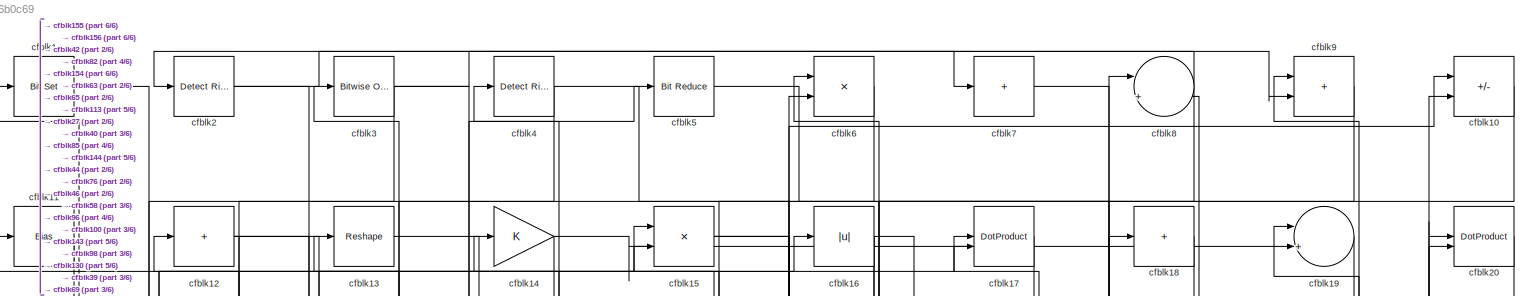
[diagram: root canvas - part 1/6, full width, top band]
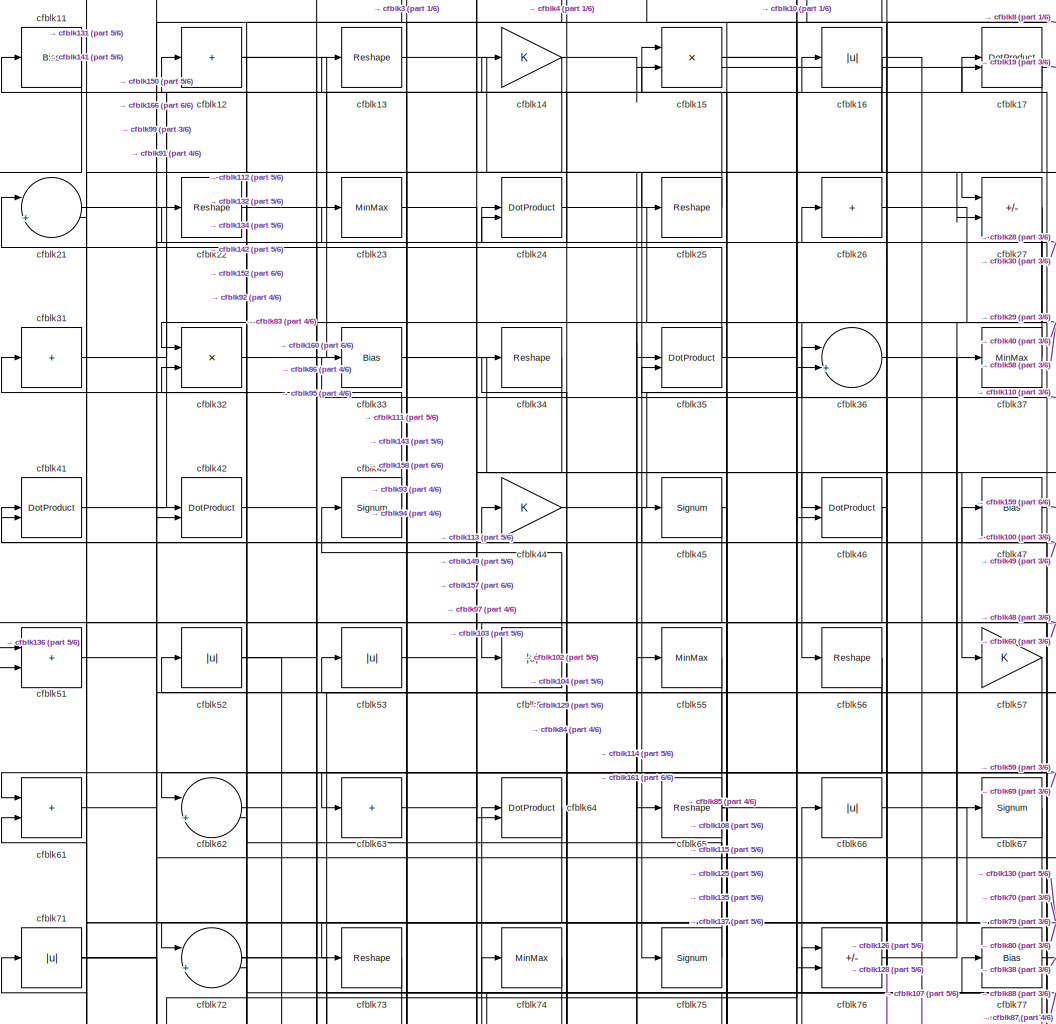
[diagram: root canvas - part 2/6, top center region]
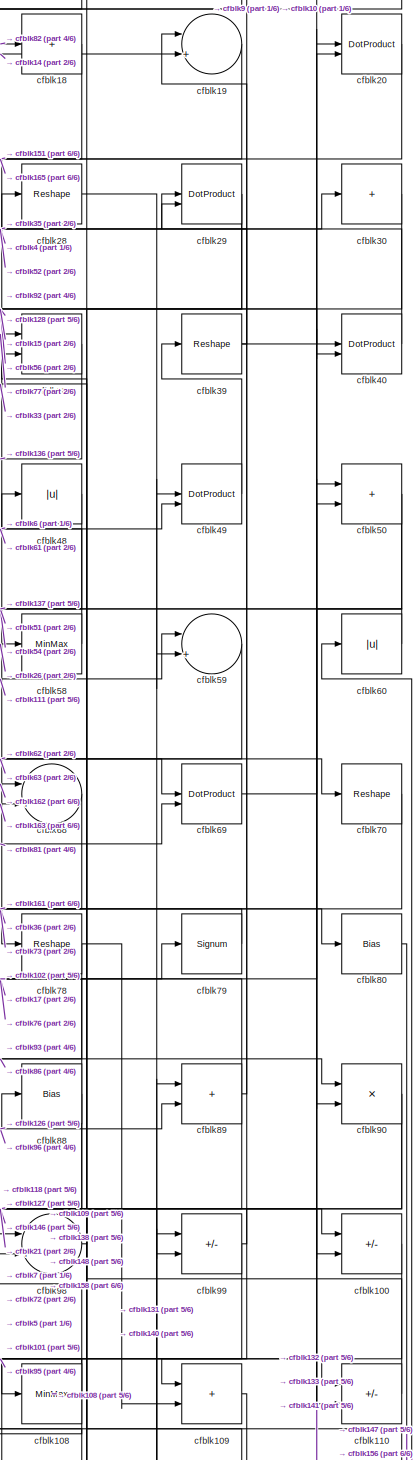
[diagram: root canvas - part 3/6, middle right region]
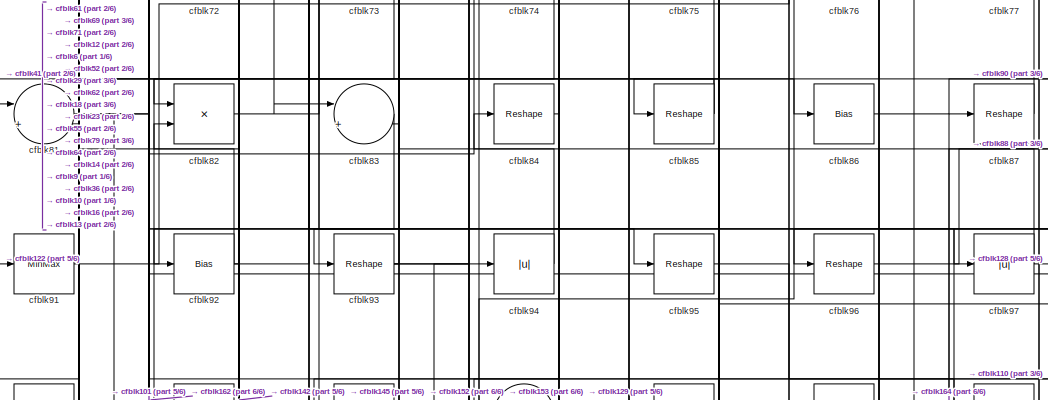
[diagram: root canvas - part 4/6, central region]
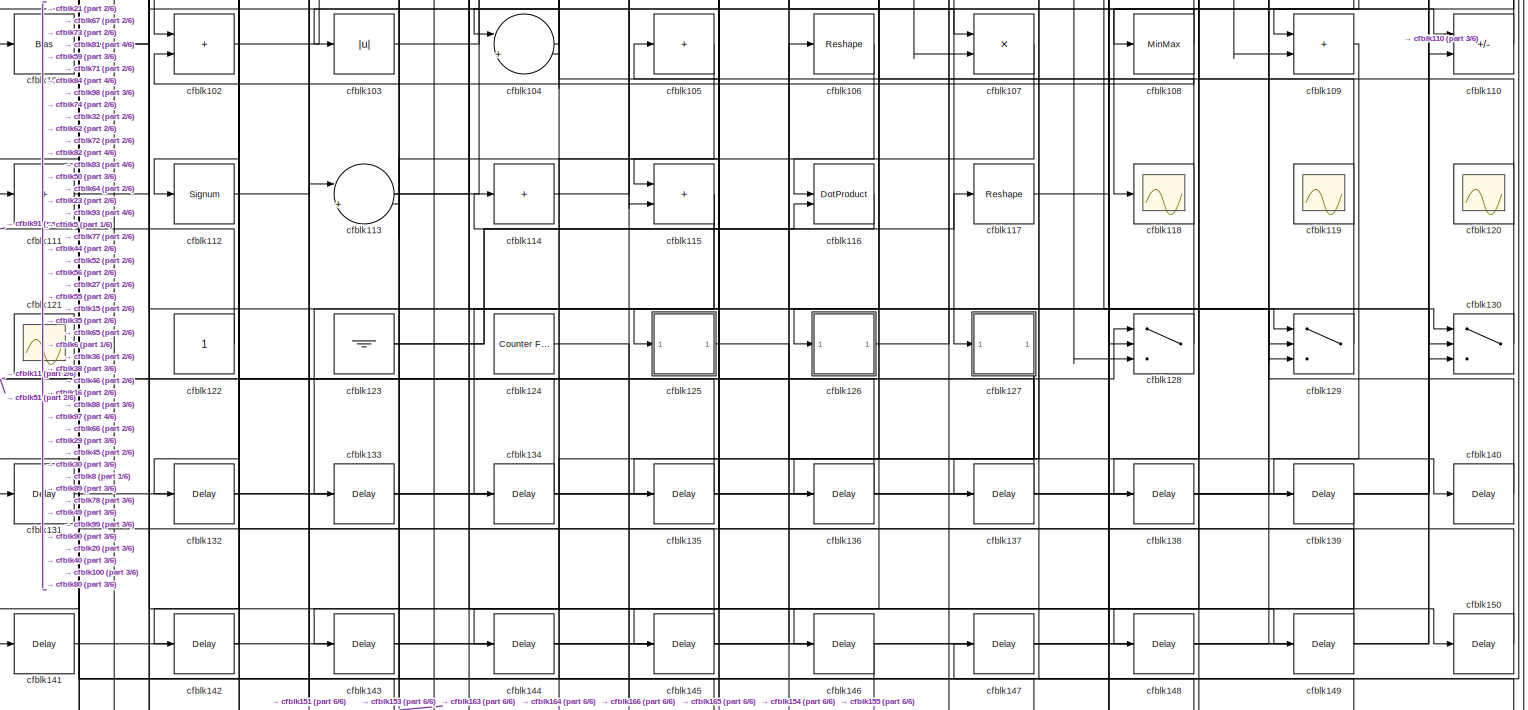
[diagram: root canvas - part 5/6, full width, bottom band]
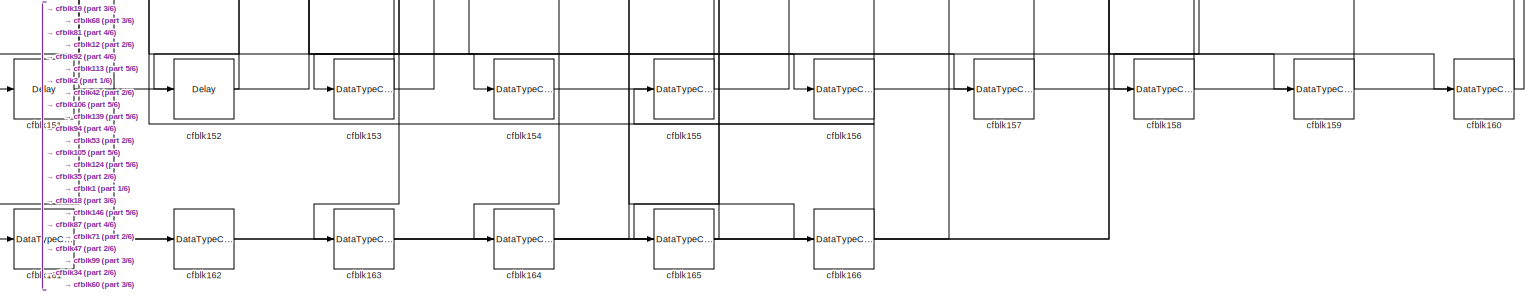
[diagram: root canvas - part 6/6, full width, bottom band]
MODEL slx_fe7d186b0c69
KIND model
CONFIG AbsTol = auto
CONFIG EnableMultiTasking = off
CONFIG FixedStep = auto
CONFIG MaxStep = auto
CONFIG MinStep = auto
CONFIG RelTol = 1e-3
CONFIG SampleTimeConstraint = Unconstrained
CONFIG SolverName = VariableStepAuto
CONFIG StartTime = 0.0
CONFIG StopTime = 10.0
BLOCK [Reference] cfblk1  REF=simulink/Logic and Bit
Operations/Bit Set
  LibrarySourceBlock = hdlsllib/Logic and Bit\nOperations/Bit Set
  SourceBlock = simulink/Logic and Bit\nOperations/Bit Set
  SourceType = Bit Set
BLOCK [Sum] cfblk10
  IconShape = rectangular
  Inputs = +-
BLOCK [Sum] cfblk100
  IconShape = rectangular
  Inputs = +-
BLOCK [Bias] cfblk101
  Bias = 0.0
  SaturateOnIntegerOverflow = off
BLOCK [Sum] cfblk102
  IconShape = rectangular
BLOCK [Abs] cfblk103
  SaturateOnIntegerOverflow = off
BLOCK [Sum] cfblk104
  Inputs = |++
BLOCK [Sum] cfblk105
  IconShape = rectangular
  Inputs = +
BLOCK [Reshape] cfblk106
BLOCK [Product] cfblk107
  Inputs = */
  RndMeth = Zero
  SaturateOnIntegerOverflow = on
BLOCK [MinMax] cfblk108
BLOCK [Sum] cfblk109
  IconShape = rectangular
BLOCK [Bias] cfblk11
  Bias = 0.0
  SaturateOnIntegerOverflow = off
BLOCK [Sum] cfblk110
  IconShape = rectangular
  Inputs = +-
BLOCK [Sum] cfblk111
  IconShape = rectangular
  Inputs = +
BLOCK [Signum] cfblk112
BLOCK [Sum] cfblk113
  Inputs = |++
BLOCK [Sum] cfblk114
  IconShape = rectangular
  Inputs = +
BLOCK [Sum] cfblk115
  IconShape = rectangular
BLOCK [DotProduct] cfblk116
  OutDataTypeStr = Inherit: Inherit via internal rule
BLOCK [Reshape] cfblk117
BLOCK [Scope] cfblk118
  Floating = off
  NumInputPorts = 1
  ScopeSpecificationString = Simulink.scopes.TimeScopeBlockCfg('CurrentConfiguration', extmgr.ConfigurationSet(extmgr.Configuration('Core','General UI',true),extmgr.Configuration('Core','Source UI',true),extmgr.Configuration('Sources','WiredSimulink',true,'DataLoggingVariableName','ScopeData2','DataLoggingSaveFormat','Array','DataLoggingLimitDataPoints',true,'DataLoggingDecimation','1'),extmgr.Configuration('Visuals','Time Do...<+868ch>
BLOCK [Scope] cfblk119
  Floating = on
  NumInputPorts = 1
  ScopeSpecificationString = Simulink.scopes.TimeScopeBlockCfg('CurrentConfiguration', extmgr.ConfigurationSet(extmgr.Configuration('Core','General UI',true,'FigureColor',[0.156862745098039 0.156862745098039 0.156862745098039]),extmgr.Configuration('Core','Source UI',true),extmgr.Configuration('Sources','WiredSimulink',true,'DataLoggingVariableName','ScopeData1','DataLoggingSaveFormat','StructureWithTime','DataLoggingLimitDat...<+2713ch>  <repeated x3 — deduplicated; at blocks: cfblk119, cfblk120, cfblk121>
BLOCK [Sum] cfblk12
  IconShape = rectangular
  Inputs = +
BLOCK [Scope] cfblk120
  Floating = on
  NumInputPorts = 1
BLOCK [Scope] cfblk121
  Floating = on
  NumInputPorts = 1
BLOCK [Constant] cfblk122
  SampleTime = -1
BLOCK [Ground] cfblk123
BLOCK [Reference] cfblk124  REF=hdlsllib/Sources/Counter
Free-Running
  SourceBlock = hdlsllib/Sources/Counter\nFree-Running
  SourceType = Counter Free-Running
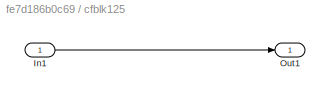
BLOCK [SubSystem] cfblk125
  LibrarySourceBlock = hdlsllib/Ports &\nSubsystems/Subsystem
BLOCK [Inport] cfblk125/In1
BLOCK [Outport] cfblk125/Out1
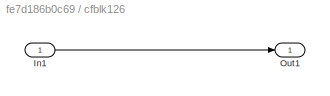
BLOCK [SubSystem] cfblk126
  LibrarySourceBlock = hdlsllib/Ports &\nSubsystems/Subsystem
BLOCK [Inport] cfblk126/In1
BLOCK [Outport] cfblk126/Out1
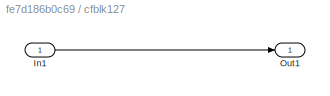
BLOCK [SubSystem] cfblk127
  LibrarySourceBlock = hdlsllib/Ports &\nSubsystems/Subsystem
BLOCK [Inport] cfblk127/In1
BLOCK [Outport] cfblk127/Out1
BLOCK [Switch] cfblk128
  InputSameDT = off
  SaturateOnIntegerOverflow = off
BLOCK [Switch] cfblk129
  InputSameDT = off
  SaturateOnIntegerOverflow = off
BLOCK [Reshape] cfblk13
BLOCK [Switch] cfblk130
  InputSameDT = off
  SaturateOnIntegerOverflow = off
BLOCK [Delay] cfblk131
  InputPortMap = u0
  SampleTime = 1
BLOCK [Delay] cfblk132
  InputPortMap = u0
  SampleTime = 1
BLOCK [Delay] cfblk133
  InputPortMap = u0
  SampleTime = 1
BLOCK [Delay] cfblk134
  InputPortMap = u0
  SampleTime = 1
BLOCK [Delay] cfblk135
  InputPortMap = u0
  SampleTime = 1
BLOCK [Delay] cfblk136
  InputPortMap = u0
  SampleTime = 1
BLOCK [Delay] cfblk137
  InputPortMap = u0
  SampleTime = 1
BLOCK [Delay] cfblk138
  InputPortMap = u0
  SampleTime = 1
BLOCK [Delay] cfblk139
  InputPortMap = u0
  SampleTime = 1
BLOCK [Gain] cfblk14
BLOCK [Delay] cfblk140
  InputPortMap = u0
  SampleTime = 1
BLOCK [Delay] cfblk141
  InputPortMap = u0
  SampleTime = 1
BLOCK [Delay] cfblk142
  InputPortMap = u0
  SampleTime = 1
BLOCK [Delay] cfblk143
  InputPortMap = u0
  SampleTime = 1
BLOCK [Delay] cfblk144
  InputPortMap = u0
  SampleTime = 1
BLOCK [Delay] cfblk145
  InputPortMap = u0
  SampleTime = 1
BLOCK [Delay] cfblk146
  InputPortMap = u0
  SampleTime = 1
BLOCK [Delay] cfblk147
  InputPortMap = u0
  SampleTime = 1
BLOCK [Delay] cfblk148
  InputPortMap = u0
  SampleTime = 1
BLOCK [Delay] cfblk149
  InputPortMap = u0
  SampleTime = 1
BLOCK [Product] cfblk15
  Inputs = */
  RndMeth = Zero
  SaturateOnIntegerOverflow = on
BLOCK [Delay] cfblk150
  InputPortMap = u0
  SampleTime = 1
BLOCK [Delay] cfblk151
  InputPortMap = u0
  SampleTime = 1
BLOCK [Delay] cfblk152
  InputPortMap = u0
  SampleTime = 1
BLOCK [DataTypeConversion] cfblk153
  RndMeth = Floor
  SaturateOnIntegerOverflow = off
BLOCK [DataTypeConversion] cfblk154
  OutDataTypeStr = uint8
  RndMeth = Floor
  SaturateOnIntegerOverflow = off
BLOCK [DataTypeConversion] cfblk155
  OutDataTypeStr = boolean
  RndMeth = Floor
  SaturateOnIntegerOverflow = off
BLOCK [DataTypeConversion] cfblk156
  OutDataTypeStr = uint8
  RndMeth = Floor
  SaturateOnIntegerOverflow = off
BLOCK [DataTypeConversion] cfblk157
  OutDataTypeStr = uint8
  RndMeth = Floor
  SaturateOnIntegerOverflow = off
BLOCK [DataTypeConversion] cfblk158
  OutDataTypeStr = uint8
  RndMeth = Floor
  SaturateOnIntegerOverflow = off
BLOCK [DataTypeConversion] cfblk159
  OutDataTypeStr = uint8
  RndMeth = Floor
  SaturateOnIntegerOverflow = off
BLOCK [Abs] cfblk16
  SaturateOnIntegerOverflow = off
BLOCK [DataTypeConversion] cfblk160
  OutDataTypeStr = uint8
  RndMeth = Floor
  SaturateOnIntegerOverflow = off
BLOCK [DataTypeConversion] cfblk161
  OutDataTypeStr = uint8
  RndMeth = Floor
  SaturateOnIntegerOverflow = off
BLOCK [DataTypeConversion] cfblk162
  OutDataTypeStr = uint8
  RndMeth = Floor
  SaturateOnIntegerOverflow = off
BLOCK [DataTypeConversion] cfblk163
  OutDataTypeStr = uint8
  RndMeth = Floor
  SaturateOnIntegerOverflow = off
BLOCK [DataTypeConversion] cfblk164
  OutDataTypeStr = uint8
  RndMeth = Floor
  SaturateOnIntegerOverflow = off
BLOCK [DataTypeConversion] cfblk165
  OutDataTypeStr = uint8
  RndMeth = Floor
  SaturateOnIntegerOverflow = off
BLOCK [DataTypeConversion] cfblk166
  OutDataTypeStr = uint8
  RndMeth = Floor
  SaturateOnIntegerOverflow = off
BLOCK [DotProduct] cfblk17
  OutDataTypeStr = Inherit: Inherit via internal rule
BLOCK [Sum] cfblk18
  IconShape = rectangular
  Inputs = +
BLOCK [Sum] cfblk19
  Inputs = |++
BLOCK [Reference] cfblk2  REF=hdlsllib/Logic and Bit
Operations/Detect Rise
Positive
  SourceBlock = hdlsllib/Logic and Bit\nOperations/Detect Rise\nPositive
  SourceType = Detect Rise Positive
BLOCK [DotProduct] cfblk20
  OutDataTypeStr = Inherit: Inherit via internal rule
BLOCK [Sum] cfblk21
  Inputs = |++
BLOCK [Reshape] cfblk22
BLOCK [MinMax] cfblk23
BLOCK [DotProduct] cfblk24
  OutDataTypeStr = Inherit: Inherit via internal rule
BLOCK [Reshape] cfblk25
BLOCK [Sum] cfblk26
  IconShape = rectangular
  Inputs = +
BLOCK [Sum] cfblk27
  IconShape = rectangular
  Inputs = +-
BLOCK [Reshape] cfblk28
BLOCK [DotProduct] cfblk29
  OutDataTypeStr = Inherit: Inherit via internal rule
BLOCK [Reference] cfblk3  REF=simulink/Logic and Bit
Operations/Bitwise
Operator
  LibrarySourceBlock = hdlsllib/Logic and Bit\nOperations/Bitwise\nOperator
  SourceBlock = simulink/Logic and Bit\nOperations/Bitwise\nOperator
  SourceType = Bitwise Operator
BLOCK [Sum] cfblk30
  IconShape = rectangular
  Inputs = +
BLOCK [Sum] cfblk31
  IconShape = rectangular
  Inputs = +
BLOCK [Product] cfblk32
  Inputs = */
  RndMeth = Zero
  SaturateOnIntegerOverflow = on
BLOCK [Bias] cfblk33
  Bias = 0.0
  SaturateOnIntegerOverflow = off
BLOCK [Reshape] cfblk34
BLOCK [DotProduct] cfblk35
  OutDataTypeStr = Inherit: Inherit via internal rule
BLOCK [Sum] cfblk36
  Inputs = |++
BLOCK [MinMax] cfblk37
BLOCK [Product] cfblk38
  Inputs = */
  RndMeth = Zero
  SaturateOnIntegerOverflow = on
BLOCK [Reshape] cfblk39
BLOCK [Reference] cfblk4  REF=hdlsllib/Logic and Bit
Operations/Detect Rise
Nonnegative
  SourceBlock = hdlsllib/Logic and Bit\nOperations/Detect Rise\nNonnegative
  SourceType = Detect Rise Nonnegative
BLOCK [DotProduct] cfblk40
  OutDataTypeStr = Inherit: Inherit via internal rule
BLOCK [DotProduct] cfblk41
  OutDataTypeStr = Inherit: Inherit via internal rule
BLOCK [DotProduct] cfblk42
  OutDataTypeStr = Inherit: Inherit via internal rule
BLOCK [Signum] cfblk43
BLOCK [Gain] cfblk44
BLOCK [Signum] cfblk45
BLOCK [DotProduct] cfblk46
  OutDataTypeStr = Inherit: Inherit via internal rule
BLOCK [Bias] cfblk47
  Bias = 0.0
  SaturateOnIntegerOverflow = off
BLOCK [Abs] cfblk48
  SaturateOnIntegerOverflow = off
BLOCK [DotProduct] cfblk49
  OutDataTypeStr = Inherit: Inherit via internal rule
BLOCK [Reference] cfblk5  REF=hdlsllib/Logic and Bit
Operations/Bit Reduce
  SourceBlock = hdlsllib/Logic and Bit\nOperations/Bit Reduce
  SourceType = Bit Reduce
BLOCK [Sum] cfblk50
  IconShape = rectangular
BLOCK [Sum] cfblk51
  IconShape = rectangular
BLOCK [Abs] cfblk52
  SaturateOnIntegerOverflow = off
BLOCK [Abs] cfblk53
  SaturateOnIntegerOverflow = off
BLOCK [Abs] cfblk54
  SaturateOnIntegerOverflow = off
BLOCK [MinMax] cfblk55
BLOCK [Reshape] cfblk56
BLOCK [Gain] cfblk57
BLOCK [MinMax] cfblk58
BLOCK [Sum] cfblk59
  Inputs = |++
BLOCK [Product] cfblk6
  Inputs = */
  RndMeth = Zero
  SaturateOnIntegerOverflow = on
BLOCK [Abs] cfblk60
  SaturateOnIntegerOverflow = off
BLOCK [Sum] cfblk61
  IconShape = rectangular
BLOCK [Sum] cfblk62
  Inputs = |++
BLOCK [Sum] cfblk63
  IconShape = rectangular
  Inputs = +
BLOCK [DotProduct] cfblk64
  OutDataTypeStr = Inherit: Inherit via internal rule
BLOCK [Reshape] cfblk65
BLOCK [Abs] cfblk66
  SaturateOnIntegerOverflow = off
BLOCK [Signum] cfblk67
BLOCK [Sum] cfblk68
  Inputs = |++
BLOCK [DotProduct] cfblk69
  OutDataTypeStr = Inherit: Inherit via internal rule
BLOCK [Sum] cfblk7
  IconShape = rectangular
  Inputs = +
BLOCK [Reshape] cfblk70
BLOCK [Abs] cfblk71
  SaturateOnIntegerOverflow = off
BLOCK [Sum] cfblk72
  Inputs = |++
BLOCK [Reshape] cfblk73
BLOCK [MinMax] cfblk74
BLOCK [Signum] cfblk75
BLOCK [Sum] cfblk76
  IconShape = rectangular
  Inputs = +-
BLOCK [Bias] cfblk77
  Bias = 0.0
  SaturateOnIntegerOverflow = off
BLOCK [Reshape] cfblk78
BLOCK [Signum] cfblk79
BLOCK [Sum] cfblk8
  Inputs = |++
BLOCK [Bias] cfblk80
  Bias = 0.0
  SaturateOnIntegerOverflow = off
BLOCK [Sum] cfblk81
  Inputs = |++
BLOCK [Product] cfblk82
  Inputs = */
  RndMeth = Zero
  SaturateOnIntegerOverflow = on
BLOCK [Sum] cfblk83
  Inputs = |++
BLOCK [Reshape] cfblk84
BLOCK [Reshape] cfblk85
BLOCK [Bias] cfblk86
  Bias = 0.0
  SaturateOnIntegerOverflow = off
BLOCK [Reshape] cfblk87
BLOCK [Bias] cfblk88
  Bias = 0.0
  SaturateOnIntegerOverflow = off
BLOCK [Sum] cfblk89
  IconShape = rectangular
BLOCK [Sum] cfblk9
  IconShape = rectangular
BLOCK [Product] cfblk90
  Inputs = */
  RndMeth = Zero
  SaturateOnIntegerOverflow = on
BLOCK [MinMax] cfblk91
BLOCK [Bias] cfblk92
  Bias = 0.0
  SaturateOnIntegerOverflow = off
BLOCK [Reshape] cfblk93
BLOCK [Abs] cfblk94
  SaturateOnIntegerOverflow = off
BLOCK [Reshape] cfblk95
BLOCK [Reshape] cfblk96
BLOCK [Abs] cfblk97
  SaturateOnIntegerOverflow = off
BLOCK [Sum] cfblk98
  Inputs = |++
BLOCK [Sum] cfblk99
  IconShape = rectangular
  Inputs = +-
LINE cfblk100:1 -> cfblk118:1
NET cfblk101:1 -> cfblk84:1, cfblk98:2
LINE cfblk102:1 -> cfblk50:2
LINE cfblk103:1 -> cfblk77:1
LINE cfblk104:1 -> cfblk44:1
LINE cfblk105:1 -> cfblk164:1
LINE cfblk106:1 -> cfblk153:1
LINE cfblk107:1 -> cfblk116:1
NET cfblk108:1 -> cfblk102:2, cfblk103:1, cfblk45:1
LINE cfblk109:1 -> cfblk139:1
LINE cfblk10:1 -> cfblk96:1
LINE cfblk110:1 -> cfblk33:1
LINE cfblk111:1 -> cfblk59:1
LINE cfblk112:1 -> cfblk74:1
NET cfblk113:1 -> cfblk5:1, cfblk66:1
LINE cfblk114:1 -> cfblk55:1
NET cfblk115:1 -> cfblk133:1, cfblk134:1
LINE cfblk116:1 -> cfblk114:1
LINE cfblk117:1 -> cfblk130:2
LINE cfblk11:1 -> cfblk128:1
LINE cfblk122:1 -> cfblk91:1
NET cfblk123:1 -> cfblk116:2, cfblk117:1
LINE cfblk124:1 -> cfblk166:1
LINE cfblk125/In1:1 -> cfblk125/Out1:1
LINE cfblk125:1 -> cfblk140:1
LINE cfblk126/In1:1 -> cfblk126/Out1:1
LINE cfblk126:1 -> cfblk89:2
LINE cfblk127/In1:1 -> cfblk127/Out1:1
NET cfblk127:1 -> cfblk144:1, cfblk145:1
LINE cfblk128:1 -> cfblk36:1
LINE cfblk129:1 -> cfblk52:1
NET cfblk12:1 -> cfblk25:1, cfblk86:1, cfblk92:1
LINE cfblk130:1 -> cfblk8:2
LINE cfblk131:1 -> cfblk49:1
LINE cfblk132:1 -> cfblk40:1
LINE cfblk133:1 -> cfblk20:1
LINE cfblk134:1 -> cfblk72:2
LINE cfblk135:1 -> cfblk32:2
LINE cfblk136:1 -> cfblk51:1
LINE cfblk137:1 -> cfblk15:2
LINE cfblk138:1 -> cfblk50:1
LINE cfblk139:1 -> cfblk163:1
LINE cfblk13:1 -> cfblk65:1
LINE cfblk140:1 -> cfblk99:1
LINE cfblk141:1 -> cfblk110:2
LINE cfblk142:1 -> cfblk62:2
LINE cfblk143:1 -> cfblk8:1
LINE cfblk144:1 -> cfblk6:2
LINE cfblk145:1 -> cfblk82:2
LINE cfblk146:1 -> cfblk155:1
LINE cfblk147:1 -> cfblk89:1
LINE cfblk148:1 -> cfblk130:3
LINE cfblk149:1 -> cfblk21:2
NET cfblk14:1 -> cfblk19:2, cfblk32:1
LINE cfblk150:1 -> cfblk35:2
LINE cfblk151:1 -> cfblk113:1
LINE cfblk152:1 -> cfblk12:1
NET cfblk153:1 -> cfblk81:2, cfblk94:1
LINE cfblk154:1 -> cfblk106:1
LINE cfblk155:1 -> cfblk1:1
LINE cfblk156:1 -> cfblk60:1
LINE cfblk157:1 -> cfblk71:1
LINE cfblk158:1 -> cfblk53:1
LINE cfblk159:1 -> cfblk34:1
NET cfblk15:1 -> cfblk40:2, cfblk69:1
LINE cfblk160:1 -> cfblk47:1
LINE cfblk161:1 -> cfblk35:1
LINE cfblk162:1 -> cfblk68:1
LINE cfblk163:1 -> cfblk68:2
LINE cfblk164:1 -> cfblk87:1
LINE cfblk165:1 -> cfblk105:1
LINE cfblk166:1 -> cfblk42:1
NET cfblk16:1 -> cfblk107:2, cfblk113:2, cfblk83:2
LINE cfblk17:1 -> cfblk75:1
LINE cfblk18:1 -> cfblk165:1
LINE cfblk19:1 -> cfblk151:1
LINE cfblk1:1 -> cfblk156:1
LINE cfblk20:1 -> cfblk78:1
NET cfblk21:1 -> cfblk17:1, cfblk99:2
LINE cfblk22:1 -> cfblk27:1
LINE cfblk23:1 -> cfblk149:1
LINE cfblk24:1 -> cfblk67:1
LINE cfblk25:1 -> cfblk11:1
LINE cfblk26:1 -> cfblk58:1
NET cfblk27:1 -> cfblk115:2, cfblk132:1
LINE cfblk28:1 -> cfblk59:2
NET cfblk29:1 -> cfblk128:2, cfblk56:1
NET cfblk2:1 -> cfblk154:1, cfblk9:2
LINE cfblk30:1 -> cfblk108:1
LINE cfblk31:1 -> cfblk15:1
LINE cfblk32:1 -> cfblk16:1
NET cfblk33:1 -> cfblk46:2, cfblk57:1
LINE cfblk34:1 -> cfblk64:2
NET cfblk35:1 -> cfblk21:1, cfblk28:1
LINE cfblk36:1 -> cfblk80:1
LINE cfblk37:1 -> cfblk24:2
LINE cfblk38:1 -> cfblk136:1
NET cfblk39:1 -> cfblk20:2, cfblk9:1
NET cfblk3:1 -> cfblk27:2, cfblk42:2, cfblk7:1
LINE cfblk40:1 -> cfblk4:1
LINE cfblk41:1 -> cfblk24:1
LINE cfblk42:1 -> cfblk160:1
LINE cfblk43:1 -> cfblk31:1
LINE cfblk44:1 -> cfblk10:1
NET cfblk45:1 -> cfblk125:1, cfblk141:1
NET cfblk46:1 -> cfblk115:1, cfblk126:1
LINE cfblk47:1 -> cfblk159:1
LINE cfblk48:1 -> cfblk51:2
LINE cfblk49:1 -> cfblk39:1
NET cfblk4:1 -> cfblk63:1, cfblk76:2
NET cfblk50:1 -> cfblk137:1, cfblk90:2
LINE cfblk51:1 -> cfblk26:1
NET cfblk52:1 -> cfblk30:1, cfblk83:1
LINE cfblk53:1 -> cfblk157:1
LINE cfblk54:1 -> cfblk43:1
LINE cfblk55:1 -> cfblk93:1
NET cfblk56:1 -> cfblk104:2, cfblk112:1
LINE cfblk57:1 -> cfblk61:1
LINE cfblk58:1 -> cfblk6:1
LINE cfblk59:1 -> cfblk62:1
LINE cfblk5:1 -> cfblk98:1
LINE cfblk60:1 -> cfblk54:1
LINE cfblk61:1 -> cfblk48:1
LINE cfblk62:1 -> cfblk95:1
LINE cfblk63:1 -> cfblk70:1
LINE cfblk64:1 -> cfblk143:1
NET cfblk65:1 -> cfblk104:1, cfblk129:2, cfblk135:1, cfblk3:1
LINE cfblk66:1 -> cfblk130:1
LINE cfblk67:1 -> cfblk131:1
LINE cfblk68:1 -> cfblk161:1
LINE cfblk69:1 -> cfblk10:2
LINE cfblk6:1 -> cfblk82:1
LINE cfblk70:1 -> cfblk72:1
NET cfblk71:1 -> cfblk107:1, cfblk150:1, cfblk97:1
NET cfblk72:1 -> cfblk100:1, cfblk49:2
LINE cfblk73:1 -> cfblk111:1
LINE cfblk74:1 -> cfblk102:1
LINE cfblk75:1 -> cfblk22:1
LINE cfblk76:1 -> cfblk37:1
LINE cfblk77:1 -> cfblk38:1
NET cfblk78:1 -> cfblk101:1, cfblk109:2
LINE cfblk79:1 -> cfblk73:1
LINE cfblk7:1 -> cfblk100:2
LINE cfblk80:1 -> cfblk147:1
NET cfblk81:1 -> cfblk129:3, cfblk162:1, cfblk69:2
LINE cfblk82:1 -> cfblk18:1
LINE cfblk83:1 -> cfblk142:1
LINE cfblk84:1 -> cfblk14:1
NET cfblk85:1 -> cfblk41:2, cfblk81:1
LINE cfblk86:1 -> cfblk90:1
LINE cfblk87:1 -> cfblk13:1
NET cfblk88:1 -> cfblk127:1, cfblk146:1, cfblk17:2
NET cfblk89:1 -> cfblk148:1, cfblk29:1, cfblk76:1
NET cfblk8:1 -> cfblk2:1, cfblk46:1
NET cfblk90:1 -> cfblk109:1, cfblk138:1
LINE cfblk91:1 -> cfblk36:2
NET cfblk92:1 -> cfblk152:1, cfblk29:2, cfblk61:2
NET cfblk93:1 -> cfblk129:1, cfblk23:1, cfblk79:1
LINE cfblk94:1 -> cfblk41:1
LINE cfblk95:1 -> cfblk110:1
LINE cfblk96:1 -> cfblk88:1
NET cfblk97:1 -> cfblk128:3, cfblk64:1
LINE cfblk98:1 -> cfblk38:2
NET cfblk99:1 -> cfblk158:1, cfblk19:1
LINE cfblk9:1 -> cfblk85:1
note: NET lines group one-source signal fan-out (src -> all destinations, sorted); 1:1 wires keep LINE
